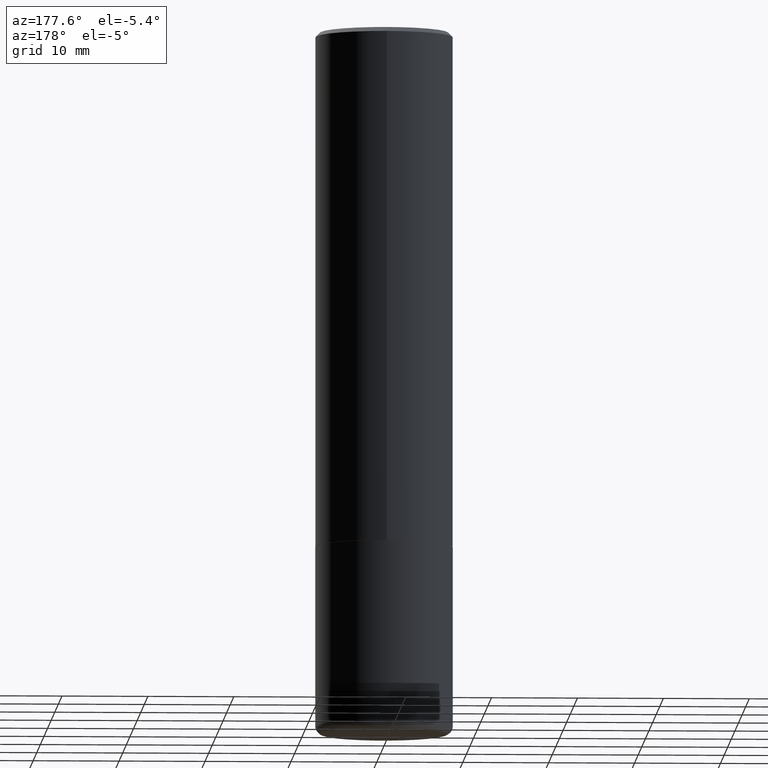
[diagram: clean part render]
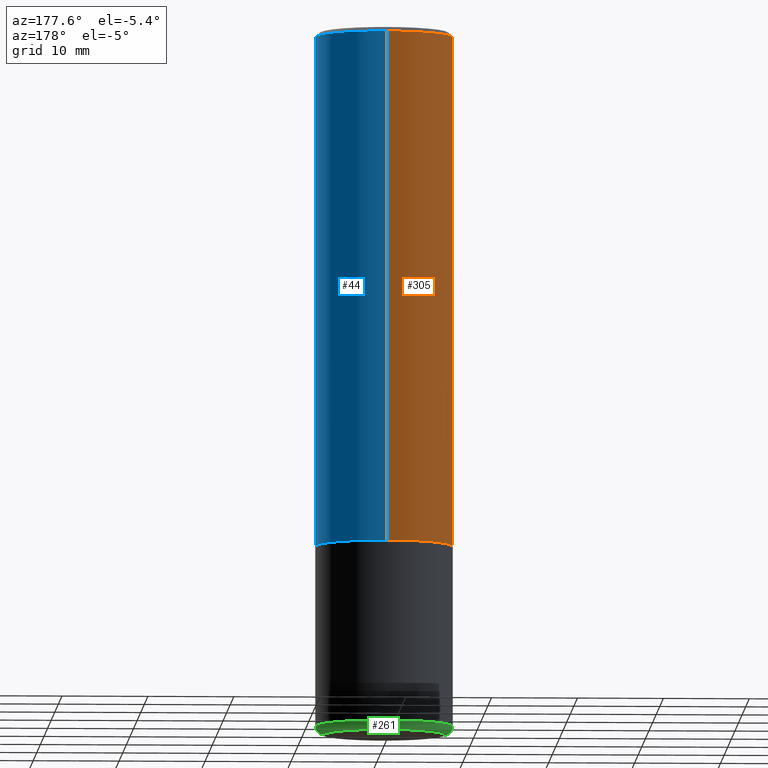
[diagram: same view with three faces highlighted in distinct colors, each labeled with its STEP entity id]
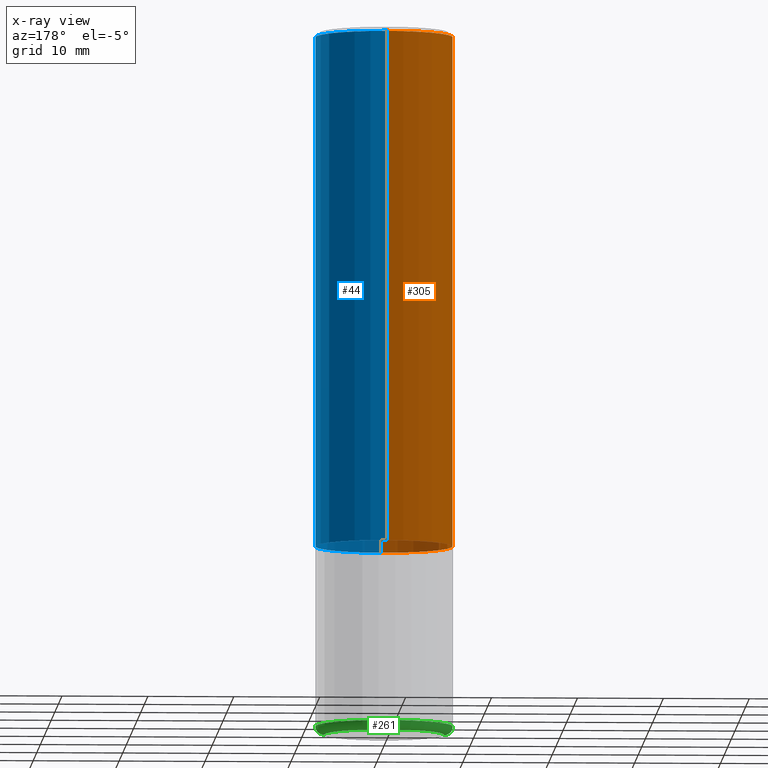
[diagram: x-ray of the same camera — body ghosted, the three highlighted faces saturated]
A machine part, auxiliary view with three faces highlighted in distinct colors.
The next image is the same camera in x-ray (body ghosted, the three faces saturated) — at least one of them is partly hidden behind the body in this view.
Their STEP definitions:

[orange] entity #305 — the highlighted cylindrical surface (partial cylindrical patch) has radius 7.9997 mm, axis along (-0, 0, 1).
#6 = DIRECTION ( 'NONE',  ( -2.444829282501072008E-29, 3.492397173158153582E-15, 1.000000000000000000 ) ) ;
#10 = DIRECTION ( 'NONE',  ( -6.982962677686264344E-15, -1.000000000000000000, 3.492397173158153188E-15 ) ) ;
#11 = VECTOR ( 'NONE', #25, 39.37007874015748143 ) ;
#25 = DIRECTION ( 'NONE',  ( -2.444829282501072288E-29, 3.492397173158153582E-15, 1.000000000000000000 ) ) ;
#34 = CARTESIAN_POINT ( 'NONE',  ( 2.237854346276465567E-15, 0.3149499999999920141, -2.361200000000001076 ) ) ;
#38 = EDGE_CURVE ( 'NONE', #387, #210, #182, .T. ) ;
#43 = EDGE_LOOP ( 'NONE', ( #162, #308, #353, #194 ) ) ;
#45 = DIRECTION ( 'NONE',  ( -2.444829282501072008E-29, 3.492397173158153582E-15, 1.000000000000000000 ) ) ;
#60 = CARTESIAN_POINT ( 'NONE',  ( 2.237854346276435985E-15, 0.3149500000000001743, -1.099930489686160976E-15 ) ) ;
#79 = AXIS2_PLACEMENT_3D ( 'NONE', #399, #45, #10 ) ;
#82 = DIRECTION ( 'NONE',  ( -2.444829282501072008E-29, 3.492397173158153582E-15, 1.000000000000000000 ) ) ;
#87 = VECTOR ( 'NONE', #181, 39.37007874015748143 ) ;
#133 = DIRECTION ( 'NONE',  ( -6.982962677686265922E-15, -1.000000000000000000, 3.469564049740290009E-15 ) ) ;
#135 = CARTESIAN_POINT ( 'NONE',  ( 5.772730901841530937E-29, -8.246248205261031476E-15, -2.361199999999999743 ) ) ;
#162 = ORIENTED_EDGE ( 'NONE', *, *, #200, .F. ) ;
#168 = EDGE_CURVE ( 'NONE', #361, #210, #381, .T. ) ;
#181 = DIRECTION ( 'NONE',  ( -2.444829282501072288E-29, 3.492397173158153582E-15, 1.000000000000000000 ) ) ;
#182 = CIRCLE ( 'NONE', #190, 0.3149500000000000632 ) ;
#190 = AXIS2_PLACEMENT_3D ( 'NONE', #271, #82, #241 ) ;
#194 = ORIENTED_EDGE ( 'NONE', *, *, #38, .F. ) ;
#200 = EDGE_CURVE ( 'NONE', #416, #387, #258, .T. ) ;
#208 = CARTESIAN_POINT ( 'NONE',  ( -2.160713844398143757E-15, -0.3149500000000001743, -0.01999999999999896652 ) ) ;
#210 = VERTEX_POINT ( 'NONE', #208 ) ;
#211 = CARTESIAN_POINT ( 'NONE',  ( -2.199284095337290265E-15, -0.3149500000000001743, 1.099930489686160976E-15 ) ) ;
#223 = AXIS2_PLACEMENT_3D ( 'NONE', #135, #6, #133 ) ;
#230 = CYLINDRICAL_SURFACE ( 'NONE', #79, 0.3149500000000001743 ) ;
#241 = DIRECTION ( 'NONE',  ( -6.982962677686265922E-15, -1.000000000000000000, 3.496670018878888311E-15 ) ) ;
#258 = LINE ( 'NONE', #60, #11 ) ;
#271 = CARTESIAN_POINT ( 'NONE',  ( 4.889658565002160796E-31, -6.984794346316331323E-17, -0.02000000000000006981 ) ) ;
#300 = EDGE_CURVE ( 'NONE', #416, #361, #403, .T. ) ;
#305 = ADVANCED_FACE ( 'NONE', ( #391 ), #230, .T. ) ;
#308 = ORIENTED_EDGE ( 'NONE', *, *, #300, .T. ) ;
#309 = CARTESIAN_POINT ( 'NONE',  ( -2.199284095337233467E-15, -0.3149500000000085564, -2.361199999999998855 ) ) ;
#352 = CARTESIAN_POINT ( 'NONE',  ( 2.199284095337290265E-15, 0.3149500000000000077, -0.02000000000000116962 ) ) ;
#353 = ORIENTED_EDGE ( 'NONE', *, *, #168, .T. ) ;
#361 = VERTEX_POINT ( 'NONE', #309 ) ;
#381 = LINE ( 'NONE', #211, #87 ) ;
#387 = VERTEX_POINT ( 'NONE', #352 ) ;
#391 = FACE_OUTER_BOUND ( 'NONE', #43, .T. ) ;
#399 = CARTESIAN_POINT ( 'NONE',  ( 0.000000000000000000, 0.000000000000000000, 0.000000000000000000 ) ) ;
#403 = CIRCLE ( 'NONE', #223, 0.3149500000000002853 ) ;
#416 = VERTEX_POINT ( 'NONE', #34 ) ;

[blue] entity #44 — the highlighted cylindrical surface (partial cylindrical patch) has radius 7.9997 mm, axis along (-0, 0, 1).
#11 = VECTOR ( 'NONE', #25, 39.37007874015748143 ) ;
#15 = CARTESIAN_POINT ( 'NONE',  ( 0.000000000000000000, 0.000000000000000000, 0.000000000000000000 ) ) ;
#19 = CIRCLE ( 'NONE', #148, 0.3149500000000000632 ) ;
#25 = DIRECTION ( 'NONE',  ( -2.444829282501072288E-29, 3.492397173158153582E-15, 1.000000000000000000 ) ) ;
#27 = DIRECTION ( 'NONE',  ( -2.444829282501072008E-29, 3.492397173158153582E-15, 1.000000000000000000 ) ) ;
#32 = DIRECTION ( 'NONE',  ( -6.982962677686265922E-15, -1.000000000000000000, 3.469564049740290009E-15 ) ) ;
#34 = CARTESIAN_POINT ( 'NONE',  ( 2.237854346276465567E-15, 0.3149499999999920141, -2.361200000000001076 ) ) ;
#44 = ADVANCED_FACE ( 'NONE', ( #270 ), #205, .T. ) ;
#60 = CARTESIAN_POINT ( 'NONE',  ( 2.237854346276435985E-15, 0.3149500000000001743, -1.099930489686160976E-15 ) ) ;
#68 = ORIENTED_EDGE ( 'NONE', *, *, #149, .T. ) ;
#69 = ORIENTED_EDGE ( 'NONE', *, *, #200, .T. ) ;
#87 = VECTOR ( 'NONE', #181, 39.37007874015748143 ) ;
#109 = DIRECTION ( 'NONE',  ( -2.444829282501072008E-29, 3.492397173158153582E-15, 1.000000000000000000 ) ) ;
#148 = AXIS2_PLACEMENT_3D ( 'NONE', #283, #397, #204 ) ;
#149 = EDGE_CURVE ( 'NONE', #361, #416, #389, .T. ) ;
#159 = ORIENTED_EDGE ( 'NONE', *, *, #345, .F. ) ;
#168 = EDGE_CURVE ( 'NONE', #361, #210, #381, .T. ) ;
#181 = DIRECTION ( 'NONE',  ( -2.444829282501072288E-29, 3.492397173158153582E-15, 1.000000000000000000 ) ) ;
#200 = EDGE_CURVE ( 'NONE', #416, #387, #258, .T. ) ;
#204 = DIRECTION ( 'NONE',  ( -6.982962677686265922E-15, -1.000000000000000000, 3.496670018878888311E-15 ) ) ;
#205 = CYLINDRICAL_SURFACE ( 'NONE', #347, 0.3149500000000001743 ) ;
#208 = CARTESIAN_POINT ( 'NONE',  ( -2.160713844398143757E-15, -0.3149500000000001743, -0.01999999999999896652 ) ) ;
#210 = VERTEX_POINT ( 'NONE', #208 ) ;
#211 = CARTESIAN_POINT ( 'NONE',  ( -2.199284095337290265E-15, -0.3149500000000001743, 1.099930489686160976E-15 ) ) ;
#257 = EDGE_LOOP ( 'NONE', ( #68, #69, #159, #293 ) ) ;
#258 = LINE ( 'NONE', #60, #11 ) ;
#270 = FACE_OUTER_BOUND ( 'NONE', #257, .T. ) ;
#283 = CARTESIAN_POINT ( 'NONE',  ( 4.889658565002160796E-31, -6.984794346316331323E-17, -0.02000000000000006981 ) ) ;
#293 = ORIENTED_EDGE ( 'NONE', *, *, #168, .F. ) ;
#309 = CARTESIAN_POINT ( 'NONE',  ( -2.199284095337233467E-15, -0.3149500000000085564, -2.361199999999998855 ) ) ;
#345 = EDGE_CURVE ( 'NONE', #210, #387, #19, .T. ) ;
#346 = CARTESIAN_POINT ( 'NONE',  ( 5.772730901841530937E-29, -8.246248205261031476E-15, -2.361199999999999743 ) ) ;
#347 = AXIS2_PLACEMENT_3D ( 'NONE', #15, #109, #366 ) ;
#352 = CARTESIAN_POINT ( 'NONE',  ( 2.199284095337290265E-15, 0.3149500000000000077, -0.02000000000000116962 ) ) ;
#361 = VERTEX_POINT ( 'NONE', #309 ) ;
#366 = DIRECTION ( 'NONE',  ( -6.982962677686264344E-15, -1.000000000000000000, 3.492397173158153188E-15 ) ) ;
#373 = AXIS2_PLACEMENT_3D ( 'NONE', #346, #27, #32 ) ;
#381 = LINE ( 'NONE', #211, #87 ) ;
#387 = VERTEX_POINT ( 'NONE', #352 ) ;
#389 = CIRCLE ( 'NONE', #373, 0.3149500000000002853 ) ;
#397 = DIRECTION ( 'NONE',  ( -2.444829282501072008E-29, 3.492397173158153582E-15, 1.000000000000000000 ) ) ;
#416 = VERTEX_POINT ( 'NONE', #34 ) ;

[green] entity #261 — the highlighted toroidal blend (fillet) surface has major radius 6.999 mm and minor (blend) radius 1.0008 mm.
#2 = VERTEX_POINT ( 'NONE', #276 ) ;
#3 = CARTESIAN_POINT ( 'NONE',  ( 0.3149500000000002853, -1.333326893677419946E-14, -3.188899999999999846 ) ) ;
#22 = ORIENTED_EDGE ( 'NONE', *, *, #186, .F. ) ;
#23 = DIRECTION ( 'NONE',  ( -6.982962677686266711E-15, -1.000000000000000000, 3.491481338843145583E-15 ) ) ;
#46 = AXIS2_PLACEMENT_3D ( 'NONE', #94, #23, #216 ) ;
#53 = DIRECTION ( 'NONE',  ( 1.000000000000000000, -6.982962677686268288E-15, 0.000000000000000000 ) ) ;
#70 = CARTESIAN_POINT ( 'NONE',  ( 7.798355476043781401E-29, -1.113398484143690801E-14, -3.188899999999999846 ) ) ;
#85 = VERTEX_POINT ( 'NONE', #127 ) ;
#91 = ORIENTED_EDGE ( 'NONE', *, *, #195, .T. ) ;
#94 = CARTESIAN_POINT ( 'NONE',  ( 0.2755500000000000171, -1.305814020727335945E-14, -3.188899999999999846 ) ) ;
#96 = DIRECTION ( 'NONE',  ( -2.445468806185136597E-29, 3.491481338843145583E-15, 1.000000000000000000 ) ) ;
#103 = AXIS2_PLACEMENT_3D ( 'NONE', #70, #164, #221 ) ;
#105 = CARTESIAN_POINT ( 'NONE',  ( -0.2755500000000000171, -9.176084333049950645E-15, -3.188899999999999846 ) ) ;
#118 = CARTESIAN_POINT ( 'NONE',  ( 7.894706947007478239E-29, -1.127154920618732880E-14, -3.228300000000000836 ) ) ;
#121 = EDGE_CURVE ( 'NONE', #418, #279, #303, .T. ) ;
#125 = ORIENTED_EDGE ( 'NONE', *, *, #394, .T. ) ;
#127 = CARTESIAN_POINT ( 'NONE',  ( -0.2755500000000000171, -9.104889596480423310E-15, -3.228300000000000836 ) ) ;
#128 = EDGE_LOOP ( 'NONE', ( #91, #125, #22, #264 ) ) ;
#131 = CIRCLE ( 'NONE', #368, 0.2755500000000000171 ) ;
#158 = DIRECTION ( 'NONE',  ( -1.000000000000000000, 7.105427357601001859E-15, 0.000000000000000000 ) ) ;
#164 = DIRECTION ( 'NONE',  ( -2.445468806185136597E-29, 3.491481338843145583E-15, 1.000000000000000000 ) ) ;
#169 = AXIS2_PLACEMENT_3D ( 'NONE', #292, #314, #417 ) ;
#186 = EDGE_CURVE ( 'NONE', #279, #2, #215, .T. ) ;
#195 = EDGE_CURVE ( 'NONE', #418, #85, #131, .T. ) ;
#215 = CIRCLE ( 'NONE', #169, 0.3149500000000000632 ) ;
#216 = DIRECTION ( 'NONE',  ( 1.000000000000000000, -6.982962677686256455E-15, 0.000000000000000000 ) ) ;
#221 = DIRECTION ( 'NONE',  ( 1.000000000000000000, -6.982962677686266711E-15, 4.883557194083112901E-29 ) ) ;
#222 = DIRECTION ( 'NONE',  ( 7.105427357601001859E-15, 1.000000000000000000, -3.491481338843145583E-15 ) ) ;
#261 = ADVANCED_FACE ( 'NONE', ( #316 ), #322, .T. ) ;
#262 = CARTESIAN_POINT ( 'NONE',  ( 0.2755500000000000171, -1.319570457202378025E-14, -3.228300000000000836 ) ) ;
#264 = ORIENTED_EDGE ( 'NONE', *, *, #121, .F. ) ;
#276 = CARTESIAN_POINT ( 'NONE',  ( -0.3149500000000002853, -8.896130495160468872E-15, -3.188899999999999846 ) ) ;
#279 = VERTEX_POINT ( 'NONE', #3 ) ;
#292 = CARTESIAN_POINT ( 'NONE',  ( 7.798355476043781401E-29, -1.113398484143690801E-14, -3.188899999999999846 ) ) ;
#303 = CIRCLE ( 'NONE', #46, 0.03940000000000040692 ) ;
#314 = DIRECTION ( 'NONE',  ( -2.445468806185136597E-29, 3.491481338843145583E-15, 1.000000000000000000 ) ) ;
#316 = FACE_OUTER_BOUND ( 'NONE', #128, .T. ) ;
#322 = TOROIDAL_SURFACE ( 'NONE', #103, 0.2755500000000000171, 0.03940000000000037222 ) ;
#323 = CIRCLE ( 'NONE', #404, 0.03940000000000040692 ) ;
#368 = AXIS2_PLACEMENT_3D ( 'NONE', #118, #96, #53 ) ;
#394 = EDGE_CURVE ( 'NONE', #85, #2, #323, .T. ) ;
#404 = AXIS2_PLACEMENT_3D ( 'NONE', #105, #222, #158 ) ;
#417 = DIRECTION ( 'NONE',  ( 1.000000000000000000, -6.982962677686268288E-15, 0.000000000000000000 ) ) ;
#418 = VERTEX_POINT ( 'NONE', #262 ) ;